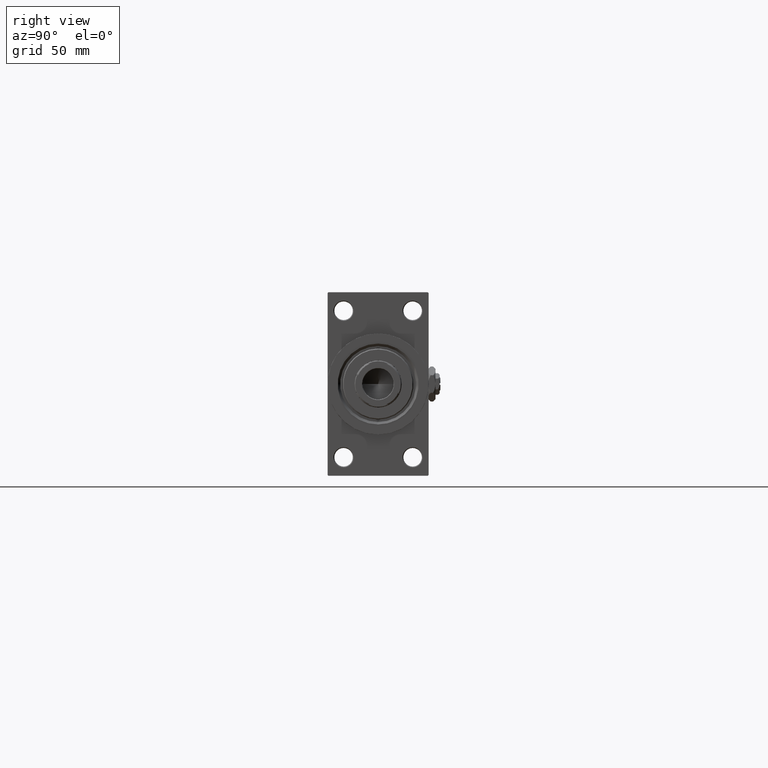
[diagram: clean part render]
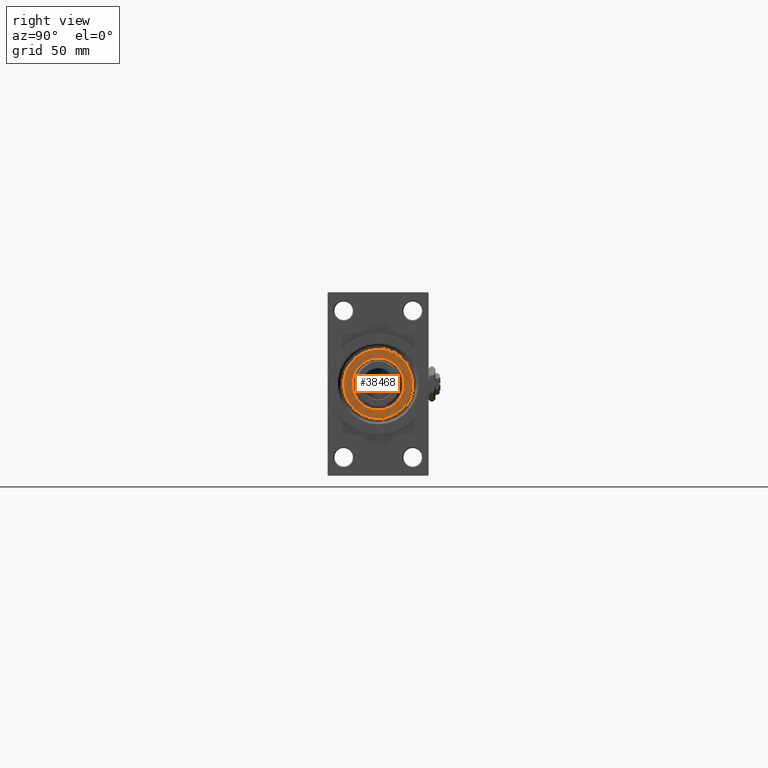
[diagram: same view with one face highlighted and labeled with its STEP entity id]
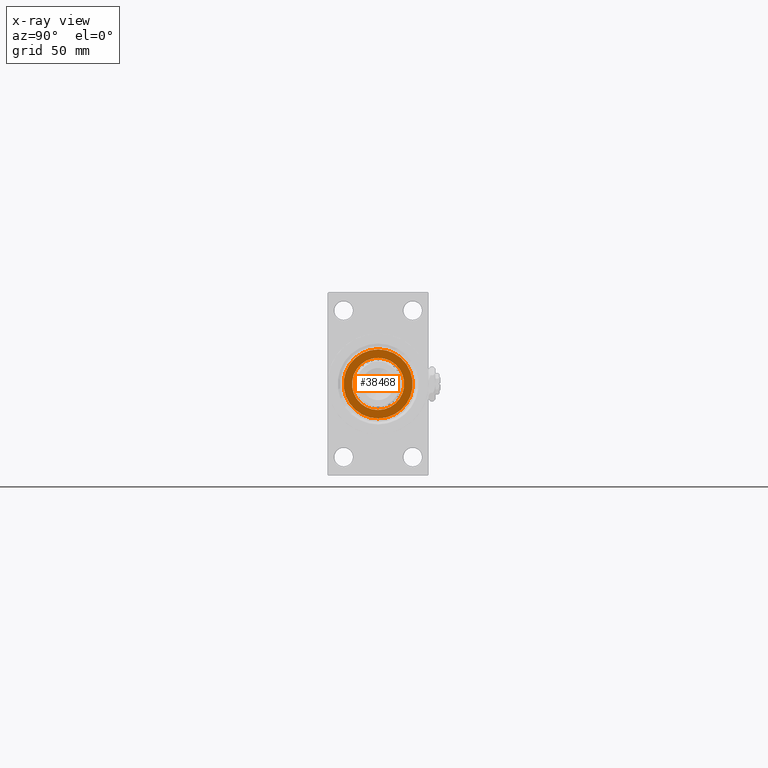
[diagram: x-ray of the same camera — body ghosted, the highlighted face saturated]
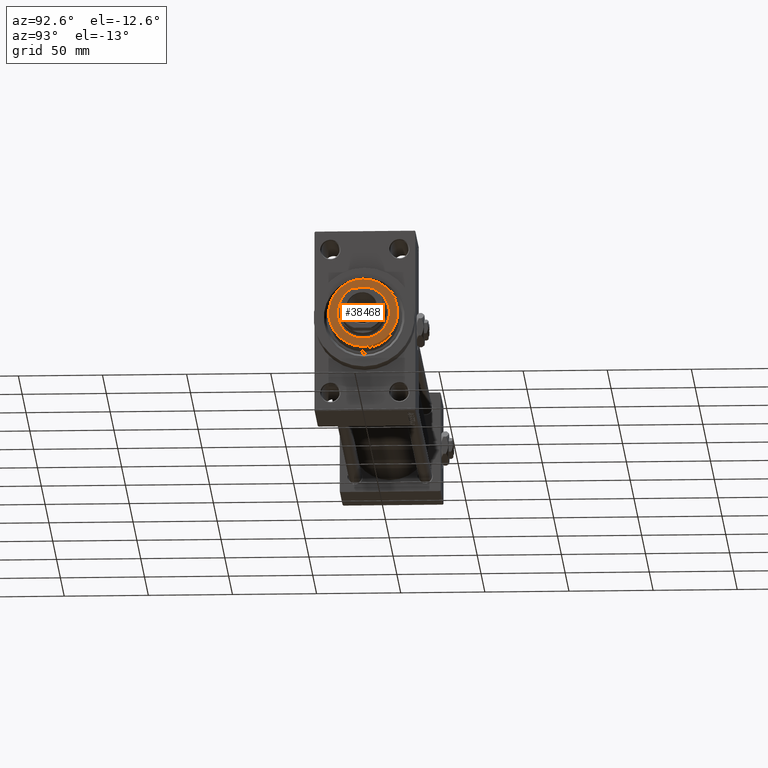
[diagram: same view with one face highlighted and labeled with its STEP entity id]
A machine part, right view. The second image highlights one B-rep face of the part: STEP entity #38468.
The next image is the same camera in x-ray: the body ghosted, the highlighted face saturated — about 0% of this face is hidden behind the body in this view.
A second angle (auxiliary view) of the same face is appended — the face is thin or edge-on in the first view.
In plain terms, the highlighted planar face has unit normal (1, -0, -0).
Its self-contained STEP definition (entity closure, byte-faithful):
#1740 = DIRECTION ( 'NONE',  ( 0.000000000000000000, 0.000000000000000000, 1.000000000000000000 ) ) ;
#2348 = CARTESIAN_POINT ( 'NONE',  ( 0.000000000000000000, 0.000000000000000000, 55.26000000000000512 ) ) ;
#3013 = AXIS2_PLACEMENT_3D ( 'NONE', #49550, #7170, #3651 ) ;
#3651 = DIRECTION ( 'NONE',  ( 1.000000000000000000, 0.000000000000000000, 0.000000000000000000 ) ) ;
#4110 = CIRCLE ( 'NONE', #32124, 15.50000000000000000 ) ;
#6191 = AXIS2_PLACEMENT_3D ( 'NONE', #28173, #43482, #9130 ) ;
#6926 = VERTEX_POINT ( 'NONE', #24512 ) ;
#7170 = DIRECTION ( 'NONE',  ( 0.000000000000000000, 0.000000000000000000, 1.000000000000000000 ) ) ;
#8888 = FACE_BOUND ( 'NONE', #35979, .T. ) ;
#9130 = DIRECTION ( 'NONE',  ( 1.000000000000000000, 0.000000000000000000, -0.000000000000000000 ) ) ;
#10109 = CARTESIAN_POINT ( 'NONE',  ( 0.000000000000000000, 0.000000000000000000, 55.26000000000000512 ) ) ;
#11860 = EDGE_CURVE ( 'NONE', #18195, #6926, #34523, .T. ) ;
#12289 = CARTESIAN_POINT ( 'NONE',  ( -20.50000000000000355, 0.000000000000000000, 55.26000000000000512 ) ) ;
#12515 = EDGE_CURVE ( 'NONE', #6926, #18195, #4110, .T. ) ;
#13426 = CIRCLE ( 'NONE', #3013, 20.50000000000000355 ) ;
#17260 = DIRECTION ( 'NONE',  ( 1.000000000000000000, 0.000000000000000000, 0.000000000000000000 ) ) ;
#18104 = DIRECTION ( 'NONE',  ( 1.000000000000000000, 0.000000000000000000, 0.000000000000000000 ) ) ;
#18195 = VERTEX_POINT ( 'NONE', #44507 ) ;
#21620 = VERTEX_POINT ( 'NONE', #23318 ) ;
#22128 = ORIENTED_EDGE ( 'NONE', *, *, #23654, .T. ) ;
#22133 = ORIENTED_EDGE ( 'NONE', *, *, #41177, .T. ) ;
#23318 = CARTESIAN_POINT ( 'NONE',  ( 20.50000000000000355, 2.541142108230758269E-15, 55.26000000000000512 ) ) ;
#23654 = EDGE_CURVE ( 'NONE', #21620, #44357, #13426, .T. ) ;
#24512 = CARTESIAN_POINT ( 'NONE',  ( -15.50000000000000000, 1.898202538678397557E-15, 55.26000000000000512 ) ) ;
#24636 = DIRECTION ( 'NONE',  ( 1.000000000000000000, 0.000000000000000000, 0.000000000000000000 ) ) ;
#24658 = CIRCLE ( 'NONE', #47104, 20.50000000000000355 ) ;
#28173 = CARTESIAN_POINT ( 'NONE',  ( 0.000000000000000000, 0.000000000000000000, 55.26000000000000512 ) ) ;
#29232 = ORIENTED_EDGE ( 'NONE', *, *, #12515, .F. ) ;
#32124 = AXIS2_PLACEMENT_3D ( 'NONE', #34822, #1740, #17260 ) ;
#34523 = CIRCLE ( 'NONE', #48940, 15.50000000000000000 ) ;
#34822 = CARTESIAN_POINT ( 'NONE',  ( 0.000000000000000000, 0.000000000000000000, 55.26000000000000512 ) ) ;
#35071 = EDGE_LOOP ( 'NONE', ( #22133, #22128 ) ) ;
#35979 = EDGE_LOOP ( 'NONE', ( #46265, #29232 ) ) ;
#38468 = ADVANCED_FACE ( 'NONE', ( #8888, #39464 ), #47250, .T. ) ;
#39464 = FACE_OUTER_BOUND ( 'NONE', #35071, .T. ) ;
#39701 = DIRECTION ( 'NONE',  ( 0.000000000000000000, 0.000000000000000000, 1.000000000000000000 ) ) ;
#41177 = EDGE_CURVE ( 'NONE', #44357, #21620, #24658, .T. ) ;
#43482 = DIRECTION ( 'NONE',  ( 0.000000000000000000, 0.000000000000000000, 1.000000000000000000 ) ) ;
#44357 = VERTEX_POINT ( 'NONE', #12289 ) ;
#44507 = CARTESIAN_POINT ( 'NONE',  ( 15.50000000000000000, 0.000000000000000000, 55.26000000000000512 ) ) ;
#44713 = DIRECTION ( 'NONE',  ( 0.000000000000000000, 0.000000000000000000, 1.000000000000000000 ) ) ;
#46265 = ORIENTED_EDGE ( 'NONE', *, *, #11860, .F. ) ;
#47104 = AXIS2_PLACEMENT_3D ( 'NONE', #2348, #44713, #18104 ) ;
#47250 = PLANE ( 'NONE',  #6191 ) ;
#48940 = AXIS2_PLACEMENT_3D ( 'NONE', #10109, #39701, #24636 ) ;
#49550 = CARTESIAN_POINT ( 'NONE',  ( 0.000000000000000000, 0.000000000000000000, 55.26000000000000512 ) ) ;